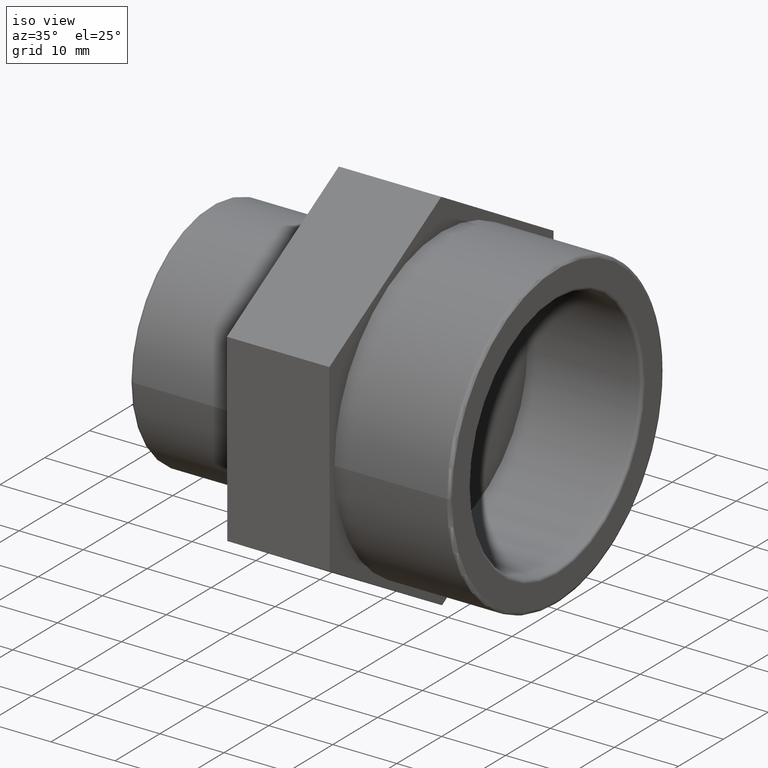
[diagram: clean part render]
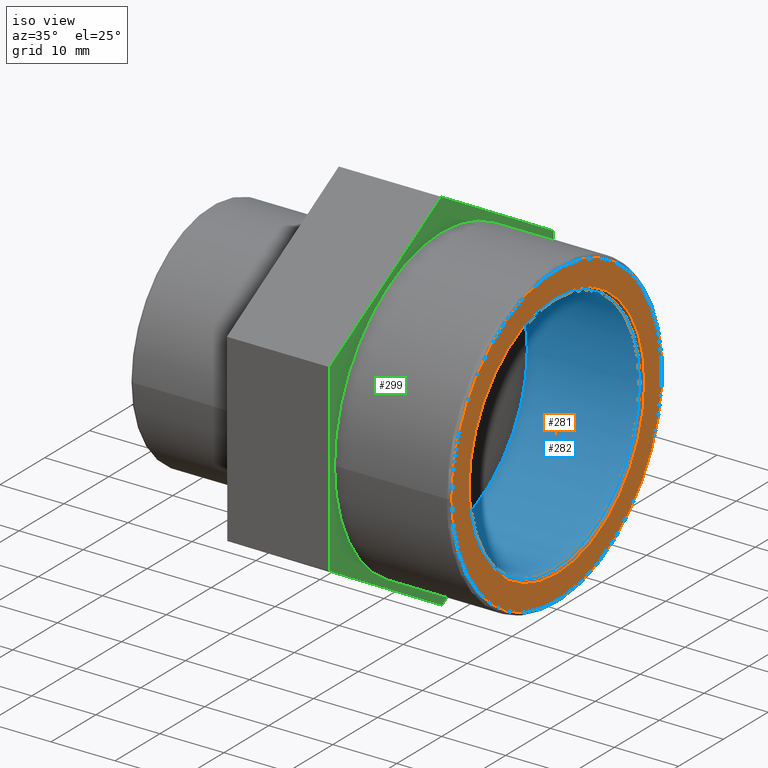
[diagram: same view with three faces highlighted in distinct colors, each labeled with its STEP entity id]
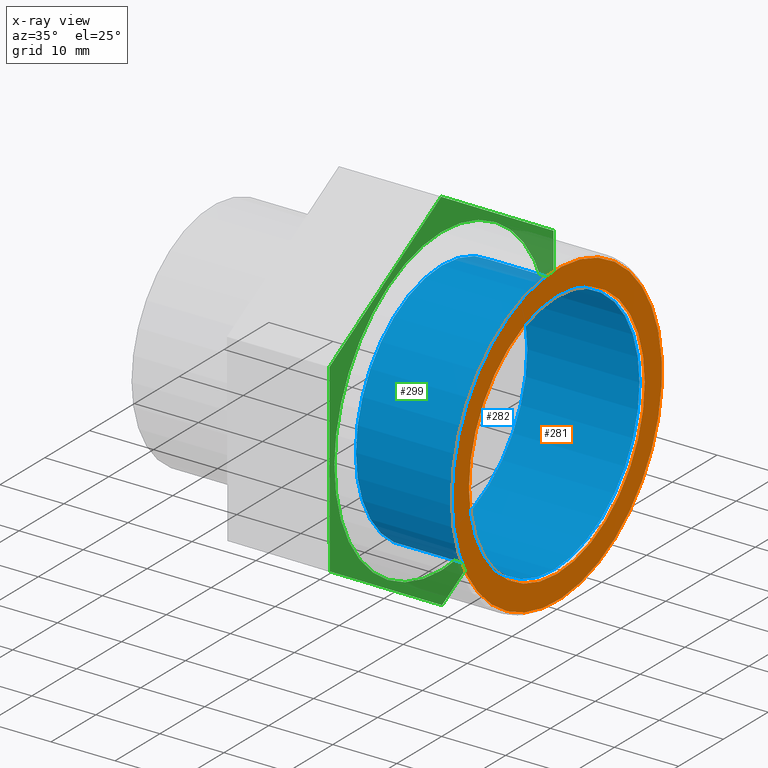
[diagram: x-ray of the same camera — body ghosted, the three highlighted faces saturated]
A machine part, iso view with three faces highlighted in distinct colors.
The next image is the same camera in x-ray (body ghosted, the three faces saturated) — at least one of them is partly hidden behind the body in this view.
Their STEP definitions:

[orange] entity #281 — the highlighted planar face has unit normal (1, 0, 0).
#56=PLANE('',#306);
#69=FACE_BOUND('',#107,.T.);
#84=FACE_OUTER_BOUND('',#106,.T.);
#106=EDGE_LOOP('',(#214));
#107=EDGE_LOOP('',(#215));
#141=CIRCLE('',#305,19.59923);
#142=CIRCLE('',#307,23.42347);
#155=VERTEX_POINT('',#432);
#156=VERTEX_POINT('',#435);
#181=EDGE_CURVE('',#155,#155,#141,.T.);
#182=EDGE_CURVE('',#156,#156,#142,.T.);
#214=ORIENTED_EDGE('',*,*,#182,.F.);
#215=ORIENTED_EDGE('',*,*,#181,.F.);
#281=ADVANCED_FACE('',(#84,#69),#56,.T.);
#305=AXIS2_PLACEMENT_3D('',#433,#344,#345);
#306=AXIS2_PLACEMENT_3D('',#434,#346,#347);
#307=AXIS2_PLACEMENT_3D('',#436,#348,#349);
#344=DIRECTION('center_axis',(1.,1.83697019872103E-16,0.));
#345=DIRECTION('ref_axis',(-1.83697019872103E-16,1.,6.12323399573677E-17));
#346=DIRECTION('center_axis',(1.,1.83697019872103E-16,0.));
#347=DIRECTION('ref_axis',(0.,0.,-1.));
#348=DIRECTION('center_axis',(-1.,-1.83697019872103E-16,0.));
#349=DIRECTION('ref_axis',(-1.83697019872103E-16,1.,6.12323399573677E-17));
#432=CARTESIAN_POINT('',(27.,-19.59923,-3.60032014278792E-15));
#433=CARTESIAN_POINT('Origin',(27.,9.91963907309356E-15,0.));
#434=CARTESIAN_POINT('Origin',(27.,-23.9015,0.));
#435=CARTESIAN_POINT('',(27.,-23.42347,1.4342738780212E-15));
#436=CARTESIAN_POINT('Origin',(27.,9.91963907309356E-15,0.));

[blue] entity #282 — the highlighted cylindrical surface (bore or boss wall) has radius 19.1212 mm, axis along (-1, -0, 0).
#51=CYLINDRICAL_SURFACE('',#308,19.1212);
#70=FACE_BOUND('',#109,.T.);
#85=FACE_OUTER_BOUND('',#108,.T.);
#108=EDGE_LOOP('',(#216));
#109=EDGE_LOOP('',(#217));
#140=CIRCLE('',#304,19.1212);
#143=CIRCLE('',#309,19.1212);
#154=VERTEX_POINT('',#430);
#157=VERTEX_POINT('',#438);
#180=EDGE_CURVE('',#154,#154,#140,.T.);
#183=EDGE_CURVE('',#157,#157,#143,.T.);
#216=ORIENTED_EDGE('',*,*,#183,.T.);
#217=ORIENTED_EDGE('',*,*,#180,.F.);
#282=ADVANCED_FACE('',(#85,#70),#51,.F.);
#304=AXIS2_PLACEMENT_3D('',#431,#342,#343);
#308=AXIS2_PLACEMENT_3D('',#437,#350,#351);
#309=AXIS2_PLACEMENT_3D('',#439,#352,#353);
#342=DIRECTION('center_axis',(-1.,-1.83697019872103E-16,0.));
#343=DIRECTION('ref_axis',(-1.85073943632862E-16,1.,6.12323399573677E-17));
#350=DIRECTION('center_axis',(-1.,-1.83697019872103E-16,0.));
#351=DIRECTION('ref_axis',(1.84139490753436E-16,-1.,0.));
#352=DIRECTION('center_axis',(-1.,-1.83697019872103E-16,0.));
#353=DIRECTION('ref_axis',(0.,0.,1.));
#430=CARTESIAN_POINT('',(26.52197,-19.1212,1.17083581879282E-15));
#431=CARTESIAN_POINT('Origin',(26.52197,9.8318263866841E-15,0.));
#437=CARTESIAN_POINT('Origin',(18.,8.26636589424464E-15,0.));
#438=CARTESIAN_POINT('',(9.00000000000001,-19.1212,0.));
#439=CARTESIAN_POINT('Origin',(9.00000000000001,6.61309271539571E-15,0.));

[green] entity #299 — the highlighted planar face has unit normal (1, 0, 0).
#17=LINE('',#470,#35);
#21=LINE('',#477,#39);
#24=LINE('',#483,#42);
#27=LINE('',#491,#45);
#30=LINE('',#495,#48);
#32=LINE('',#498,#50);
#35=VECTOR('',#388,28.8675134594813);
#39=VECTOR('',#394,28.8675134594813);
#42=VECTOR('',#399,28.8675134594813);
#45=VECTOR('',#404,28.8675134594813);
#48=VECTOR('',#409,28.8675134594813);
#50=VECTOR('',#413,28.8675134594813);
#66=PLANE('',#336);
#81=FACE_BOUND('',#137,.T.);
#102=FACE_OUTER_BOUND('',#136,.T.);
#136=EDGE_LOOP('',(#262,#263,#264,#265,#266,#267));
#137=EDGE_LOOP('',(#268));
#145=CIRCLE('',#313,23.9015);
#159=VERTEX_POINT('',#444);
#168=VERTEX_POINT('',#467);
#169=VERTEX_POINT('',#469);
#171=VERTEX_POINT('',#475);
#173=VERTEX_POINT('',#481);
#176=VERTEX_POINT('',#488);
#177=VERTEX_POINT('',#490);
#185=EDGE_CURVE('',#159,#159,#145,.T.);
#194=EDGE_CURVE('',#168,#169,#17,.T.);
#198=EDGE_CURVE('',#171,#168,#21,.T.);
#201=EDGE_CURVE('',#173,#171,#24,.T.);
#204=EDGE_CURVE('',#176,#177,#27,.T.);
#207=EDGE_CURVE('',#169,#176,#30,.T.);
#209=EDGE_CURVE('',#177,#173,#32,.T.);
#262=ORIENTED_EDGE('',*,*,#207,.F.);
#263=ORIENTED_EDGE('',*,*,#194,.F.);
#264=ORIENTED_EDGE('',*,*,#198,.F.);
#265=ORIENTED_EDGE('',*,*,#201,.F.);
#266=ORIENTED_EDGE('',*,*,#209,.F.);
#267=ORIENTED_EDGE('',*,*,#204,.F.);
#268=ORIENTED_EDGE('',*,*,#185,.T.);
#299=ADVANCED_FACE('',(#102,#81),#66,.T.);
#313=AXIS2_PLACEMENT_3D('',#445,#360,#361);
#336=AXIS2_PLACEMENT_3D('',#506,#424,#425);
#360=DIRECTION('center_axis',(-1.,-1.83697019872103E-16,0.));
#361=DIRECTION('ref_axis',(0.,0.,1.));
#388=DIRECTION('',(5.44336326563828E-19,-0.00296322894591766,0.999995609627469));
#394=DIRECTION('',(1.59357755523959E-16,-0.867503216083254,0.49743157326934));
#399=DIRECTION('',(1.58813419197395E-16,-0.864539987137336,-0.50256403635813));
#404=DIRECTION('',(-1.59357755523959E-16,0.867503216083254,-0.49743157326934));
#409=DIRECTION('',(-1.58813419197395E-16,0.864539987137336,0.50256403635813));
#413=DIRECTION('',(-5.44336326564054E-19,0.00296322894591889,-0.999995609627469));
#424=DIRECTION('center_axis',(1.,1.83697019872103E-16,0.));
#425=DIRECTION('ref_axis',(0.,0.,-1.));
#444=CARTESIAN_POINT('',(9.00000000000001,-23.9015,0.));
#445=CARTESIAN_POINT('Origin',(9.00000000000001,6.61309271539571E-15,0.));
#467=CARTESIAN_POINT('',(9.00000000000001,-24.9571197149468,-14.5077740838196));
#469=CARTESIAN_POINT('',(9.00000000000001,-25.0426607664266,14.3596126365236));
#470=CARTESIAN_POINT('',(9.00000000000001,-24.9571197149468,-14.5077740838196));
#475=CARTESIAN_POINT('',(9.00000000000001,0.0855410514798324,-28.8673867203432));
#477=CARTESIAN_POINT('',(9.00000000000001,0.0855410514798324,-28.8673867203432));
#481=CARTESIAN_POINT('',(9.,25.0426607664267,-14.3596126365236));
#483=CARTESIAN_POINT('',(9.,25.0426607664267,-14.3596126365236));
#488=CARTESIAN_POINT('',(9.00000000000001,-0.0855410514798168,28.8673867203432));
#490=CARTESIAN_POINT('',(9.,24.9571197149468,14.5077740838195));
#491=CARTESIAN_POINT('',(9.00000000000001,-0.0855410514798168,28.8673867203432));
#495=CARTESIAN_POINT('',(9.00000000000001,-25.0426607664266,14.3596126365236));
#498=CARTESIAN_POINT('',(9.,24.9571197149468,14.5077740838195));
#506=CARTESIAN_POINT('Origin',(9.00000000000001,-25.,0.));